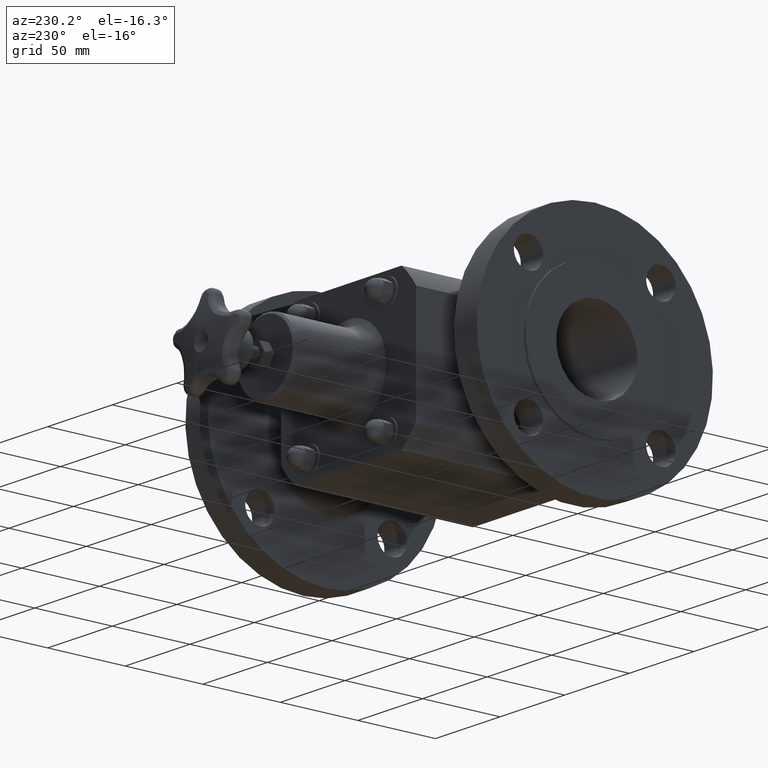
[diagram: clean part render]
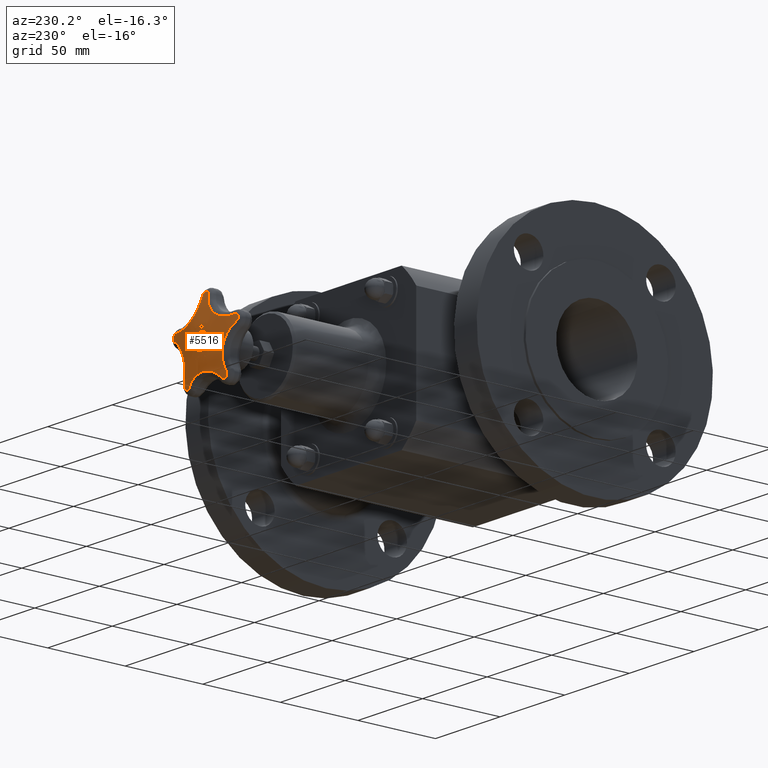
[diagram: same view with one face highlighted and labeled with its STEP entity id]
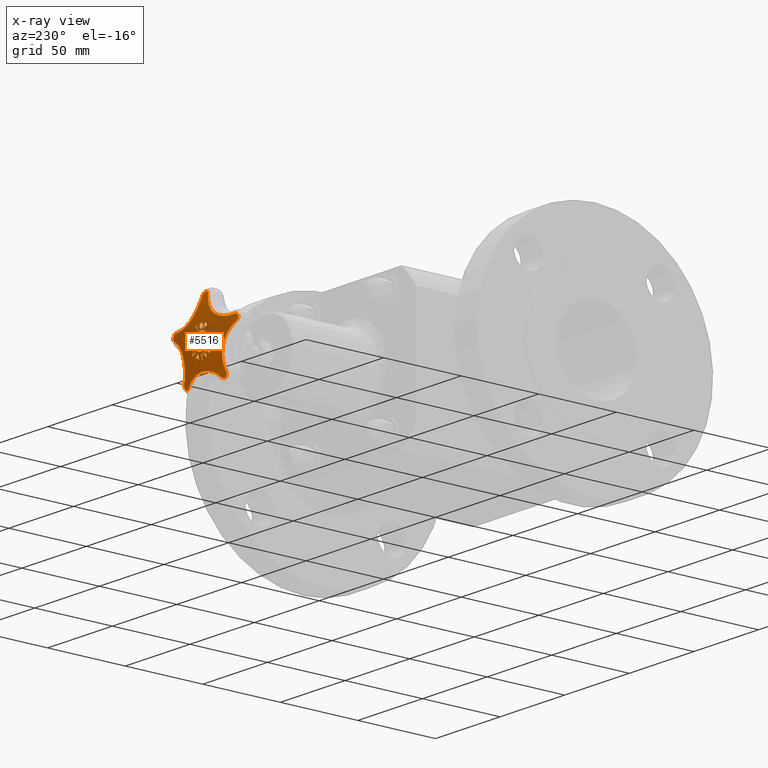
[diagram: x-ray of the same camera — body ghosted, the highlighted face saturated]
A machine part, auxiliary view. The second image highlights one B-rep face of the part: STEP entity #5516.
The next image is the same camera in x-ray: the body ghosted, the highlighted face saturated — about 0% of this face is hidden behind the body in this view.
In plain terms, the highlighted spherical surface has radius 101.6 mm.
Its self-contained STEP definition (entity closure, byte-faithful):
#2327=CARTESIAN_POINT('',(0.085862900185202,8.242578033837511,-0.334336098257463));
#2328=VERTEX_POINT('',#2327);
#2335=CARTESIAN_POINT('',(0.080862571524466,8.240070388789002,-0.364135061299997));
#2336=VERTEX_POINT('',#2335);
#2337=CARTESIAN_POINT('',(0.138077283113863,4.257500000000061,-0.023169658459774));
#2338=DIRECTION('',(0.986211736099962,9.214302E-016,-0.165488403154721));
#2339=DIRECTION('',(0.165488403154721,1.475820E-016,0.986211736099962));
#2340=AXIS2_PLACEMENT_3D('',#2337,#2338,#2339);
#2341=CIRCLE('',#2340,3.997548977913186);
#2342=EDGE_CURVE('',#2336,#2328,#2341,.T.);
#2360=CARTESIAN_POINT('',(0.066931145986267,8.240560100352910,-0.361597094393903));
#2361=VERTEX_POINT('',#2360);
#2362=CARTESIAN_POINT('',(-0.061608234058833,4.257500000000061,-0.338180345563004));
#2363=DIRECTION('',(-0.179225881333302,0.0,-0.983807950496590));
#2364=DIRECTION('',(0.0,-1.0,0.0));
#2365=AXIS2_PLACEMENT_3D('',#2362,#2363,#2364);
#2366=CIRCLE('',#2365,3.985202438944732);
#2367=EDGE_CURVE('',#2361,#2336,#2366,.T.);
#2385=CARTESIAN_POINT('',(0.086359266902222,8.249345606544418,-0.240230577846814));
#2386=VERTEX_POINT('',#2385);
#2387=CARTESIAN_POINT('',(0.121696449326061,4.257500000000061,-0.019480935927101));
#2388=DIRECTION('',(-0.987428598717144,-9.225142E-016,0.158065690254078));
#2389=DIRECTION('',(-0.158065690254078,-1.406471E-016,-0.987428598717144));
#2390=AXIS2_PLACEMENT_3D('',#2387,#2388,#2389);
#2391=CIRCLE('',#2390,3.998100857576862);
#2392=EDGE_CURVE('',#2386,#2361,#2391,.T.);
#2410=CARTESIAN_POINT('',(0.178491128782151,8.240560100243823,-0.321516958794137));
#2411=VERTEX_POINT('',#2410);
#2412=CARTESIAN_POINT('',(-0.081379549747356,4.257500000000061,-0.092237461550080));
#2413=DIRECTION('',(0.661592173204071,0.0,0.749863851879202));
#2414=DIRECTION('',(0.0,1.0,0.0));
#2415=AXIS2_PLACEMENT_3D('',#2412,#2413,#2414);
#2416=CIRCLE('',#2415,3.998108255108873);
#2417=EDGE_CURVE('',#2411,#2386,#2416,.T.);
#2453=CARTESIAN_POINT('',(0.169360113250159,8.240070388702455,-0.332340564889027));
#2454=VERTEX_POINT('',#2453);
#2455=CARTESIAN_POINT('',(0.262739148876328,4.257500000000061,-0.221652121134104));
#2456=DIRECTION('',(0.764340282334966,0.0,-0.644813099122609));
#2457=DIRECTION('',(0.0,-1.0,0.0));
#2458=AXIS2_PLACEMENT_3D('',#2455,#2456,#2457);
#2459=CIRCLE('',#2458,3.985202438627741);
#2460=EDGE_CURVE('',#2454,#2411,#2459,.T.);
#2478=CARTESIAN_POINT('',(0.146539084429395,8.242578033778210,-0.312536976105991));
#2479=VERTEX_POINT('',#2478);
#2480=CARTESIAN_POINT('',(-0.091762441742967,4.257500000000061,-0.105744133077217));
#2481=DIRECTION('',(-0.655409775395539,0.0,-0.755273477831686));
#2482=DIRECTION('',(0.0,-1.0,0.0));
#2483=AXIS2_PLACEMENT_3D('',#2480,#2481,#2482);
#2484=CIRCLE('',#2483,3.997548978137118);
#2485=EDGE_CURVE('',#2479,#2454,#2484,.T.);
#2503=CARTESIAN_POINT('',(0.116200988857738,4.257500000000061,-0.323436538421052));
#2504=DIRECTION('',(0.338111065893150,0.0,-0.941106214579735));
#2505=DIRECTION('',(0.0,-1.0,0.0));
#2506=AXIS2_PLACEMENT_3D('',#2503,#2504,#2505);
#2507=CIRCLE('',#2506,3.985208418113498);
#2508=EDGE_CURVE('',#2328,#2479,#2507,.T.);
#2538=CARTESIAN_POINT('',(0.037834369669125,8.248204436490788,0.269901206082852));
#2539=VERTEX_POINT('',#2538);
#2546=CARTESIAN_POINT('',(-0.000813251585518,8.249463335806739,0.253432563411025));
#2547=VERTEX_POINT('',#2546);
#2548=CARTESIAN_POINT('',(-0.000813251585518,8.249463335806738,0.253432563411025));
#2549=CARTESIAN_POINT('',(0.004822604549685,8.249463267161477,0.253451729844246));
#2550=CARTESIAN_POINT('',(0.010434056143409,8.249408968571611,0.254137147028970));
#2551=CARTESIAN_POINT('',(0.019829419967580,8.249191776701576,0.256945437338924));
#2552=CARTESIAN_POINT('',(0.023603879105443,8.249063271092485,0.258616838560288));
#2553=CARTESIAN_POINT('',(0.031162797320999,8.248707503911909,0.263275608997045));
#2554=CARTESIAN_POINT('',(0.034718544485047,8.248475224151731,0.266334166676060));
#2555=CARTESIAN_POINT('',(0.037834369669124,8.248204436490786,0.269901206082852));
#2556=B_SPLINE_CURVE_WITH_KNOTS('',3,(#2548,#2549,#2550,#2551,#2552,#2553,#2554,#2555),.UNSPECIFIED.,.F.,.U.,(4,2,2,4),(0.0,0.042945472093289,0.074729953679080,0.111130521126663),.UNSPECIFIED.);
#2557=EDGE_CURVE('',#2547,#2539,#2556,.T.);
#2590=CARTESIAN_POINT('',(0.051972176469600,8.244648590963305,0.316140801626153));
#2591=VERTEX_POINT('',#2590);
#2598=CARTESIAN_POINT('',(0.037834369669124,8.248204436490788,0.269901206082852));
#2599=CARTESIAN_POINT('',(0.041442739555282,8.247886429832962,0.274097371770596));
#2600=CARTESIAN_POINT('',(0.044216393332109,8.247526143654595,0.278867364485765));
#2601=CARTESIAN_POINT('',(0.051175872144365,8.246247534047958,0.295695352673442));
#2602=CARTESIAN_POINT('',(0.052000310715344,8.245304176149896,0.307867975918426));
#2603=CARTESIAN_POINT('',(0.051972176469600,8.244648590963305,0.316140801626153));
#2604=B_SPLINE_CURVE_WITH_KNOTS('',3,(#2598,#2599,#2600,#2601,#2602,#2603),.UNSPECIFIED.,.F.,.U.,(4,2,4),(0.0,0.042240697270331,0.139117363804144),.UNSPECIFIED.);
#2605=EDGE_CURVE('',#2539,#2591,#2604,.T.);
#2631=CARTESIAN_POINT('',(0.037422621985939,8.240875481075205,0.362380082417698));
#2632=VERTEX_POINT('',#2631);
#2639=CARTESIAN_POINT('',(0.051972176469600,8.244648590963305,0.316140801626153));
#2640=CARTESIAN_POINT('',(0.051955724861649,8.244265235014588,0.320978368143260));
#2641=CARTESIAN_POINT('',(0.051649887753157,8.243873160763579,0.325860197870603));
#2642=CARTESIAN_POINT('',(0.050134657362975,8.243046460787417,0.336059631335725));
#2643=CARTESIAN_POINT('',(0.048942330808366,8.242679768741301,0.340537076610656));
#2644=CARTESIAN_POINT('',(0.045132529339023,8.241814489793335,0.351068251626343));
#2645=CARTESIAN_POINT('',(0.041865078415876,8.241314249290182,0.357098260899482));
#2646=CARTESIAN_POINT('',(0.037422621985939,8.240875481075204,0.362380082417698));
#2647=B_SPLINE_CURVE_WITH_KNOTS('',3,(#2639,#2640,#2641,#2642,#2643,#2644,#2645,#2646),.UNSPECIFIED.,.F.,.U.,(4,2,2,4),(0.0,0.036978033263811,0.078812994269673,0.145814753845857),.UNSPECIFIED.);
#2648=EDGE_CURVE('',#2591,#2632,#2647,.T.);
#2676=CARTESIAN_POINT('',(-0.001238542349030,8.239552846207797,0.378488567887761));
#2677=VERTEX_POINT('',#2676);
#2684=CARTESIAN_POINT('',(0.037422621985939,8.240875481075205,0.362380082417698));
#2685=CARTESIAN_POINT('',(0.034954443929442,8.240644692501336,0.365171856276012));
#2686=CARTESIAN_POINT('',(0.032197988751053,8.240440415363450,0.367645041378230));
#2687=CARTESIAN_POINT('',(0.025433171661508,8.240054380883850,0.372335971569166));
#2688=CARTESIAN_POINT('',(0.021382576080442,8.239892027163736,0.374321631798851));
#2689=CARTESIAN_POINT('',(0.014161922593864,8.239697132621359,0.376716303028089));
#2690=CARTESIAN_POINT('',(0.011126297743758,8.239640822220808,0.377412789087581));
#2691=CARTESIAN_POINT('',(0.004967186895541,8.239568654773651,0.378304358121796));
#2692=CARTESIAN_POINT('',(0.001864839243260,8.239552808314238,0.378499121875411));
#2693=CARTESIAN_POINT('',(-0.001238542349030,8.239552846207795,0.378488567887761));
#2694=B_SPLINE_CURVE_WITH_KNOTS('',3,(#2684,#2685,#2686,#2687,#2688,#2689,#2690,#2691,#2692,#2693),.UNSPECIFIED.,.F.,.U.,(4,2,2,2,4),(0.0,0.028449418287417,0.062797366334246,0.086669104210055,0.110412733579470),.UNSPECIFIED.);
#2695=EDGE_CURVE('',#2632,#2677,#2694,.T.);
#2881=CARTESIAN_POINT('',(-0.039886494311888,8.240875481072161,0.362117169387377));
#2882=VERTEX_POINT('',#2881);
#2889=CARTESIAN_POINT('',(-0.001238542349030,8.239552846207795,0.378488567887761));
#2890=CARTESIAN_POINT('',(-0.006745334190303,8.239552913447971,0.378469840376703));
#2891=CARTESIAN_POINT('',(-0.012222719771298,8.239603190920018,0.377803010782852));
#2892=CARTESIAN_POINT('',(-0.022169110236771,8.239836259202855,0.374873454632415));
#2893=CARTESIAN_POINT('',(-0.025880772573747,8.239983982792577,0.373045650941542));
#2894=CARTESIAN_POINT('',(-0.032976239086442,8.240326456239622,0.368822005397032));
#2895=CARTESIAN_POINT('',(-0.036677483482782,8.240576120274355,0.365763676003977));
#2896=CARTESIAN_POINT('',(-0.039886494311888,8.240875481072161,0.362117169387377));
#2897=B_SPLINE_CURVE_WITH_KNOTS('',3,(#2889,#2890,#2891,#2892,#2893,#2894,#2895,#2896),.UNSPECIFIED.,.F.,.U.,(4,2,2,4),(0.0,0.041961996486355,0.079020325656231,0.132098515306939),.UNSPECIFIED.);
#2898=EDGE_CURVE('',#2677,#2882,#2897,.T.);
#2924=CARTESIAN_POINT('',(-0.054121214575593,8.244648590959130,0.315779998964418));
#2925=VERTEX_POINT('',#2924);
#2932=CARTESIAN_POINT('',(-0.039886494311888,8.240875481072161,0.362117169387377));
#2933=CARTESIAN_POINT('',(-0.043384531614648,8.241215540252521,0.357991135129825));
#2934=CARTESIAN_POINT('',(-0.046110522559896,8.241601304155973,0.353327026506886));
#2935=CARTESIAN_POINT('',(-0.049655140330858,8.242287322165410,0.344989572698872));
#2936=CARTESIAN_POINT('',(-0.051408401706377,8.242680648419814,0.340203251638014));
#2937=CARTESIAN_POINT('',(-0.053714336300573,8.243694761028996,0.327721858865082));
#2938=CARTESIAN_POINT('',(-0.054141415064126,8.244177878462876,0.321719917253610));
#2939=CARTESIAN_POINT('',(-0.054121214575593,8.244648590959130,0.315779998964418));
#2940=B_SPLINE_CURVE_WITH_KNOTS('',3,(#2932,#2933,#2934,#2935,#2936,#2937,#2938,#2939),.UNSPECIFIED.,.F.,.U.,(4,2,2,4),(0.0,0.041300163745689,0.069239721804254,0.093823977580811),.UNSPECIFIED.);
#2941=EDGE_CURVE('',#2882,#2925,#2940,.T.);
#2967=CARTESIAN_POINT('',(-0.039571990800146,8.248205379604890,0.269637962344317));
#2968=VERTEX_POINT('',#2967);
#2975=CARTESIAN_POINT('',(-0.054121214575593,8.244648590959130,0.315779998964418));
#2976=CARTESIAN_POINT('',(-0.054104973183971,8.245027048439539,0.311004246190808));
#2977=CARTESIAN_POINT('',(-0.053791585087137,8.245402200783937,0.306211457940531));
#2978=CARTESIAN_POINT('',(-0.052375519715103,8.246143410979380,0.296655576028872));
#2979=CARTESIAN_POINT('',(-0.051258684496637,8.246507467278926,0.291916990166382));
#2980=CARTESIAN_POINT('',(-0.047377403862630,8.247352193214878,0.280860112488069));
#2981=CARTESIAN_POINT('',(-0.044132654634138,8.247811607413418,0.274796561836271));
#2982=CARTESIAN_POINT('',(-0.039571990800146,8.248205379604888,0.269637962344317));
#2983=B_SPLINE_CURVE_WITH_KNOTS('',3,(#2975,#2976,#2977,#2978,#2979,#2980,#2981,#2982),.UNSPECIFIED.,.F.,.U.,(4,2,2,4),(0.0,0.036505533163791,0.073822024429602,0.126837533468264),.UNSPECIFIED.);
#2984=EDGE_CURVE('',#2925,#2968,#2983,.T.);
#3011=CARTESIAN_POINT('',(-0.039571990800146,8.248205379604890,0.269637962344317));
#3012=CARTESIAN_POINT('',(-0.036994618978143,8.248426649193283,0.266741374653484));
#3013=CARTESIAN_POINT('',(-0.034125944551208,8.248624226597652,0.264155087526019));
#3014=CARTESIAN_POINT('',(-0.028127958870902,8.248941902899334,0.260022999604723));
#3015=CARTESIAN_POINT('',(-0.024119800176995,8.249119835051880,0.257727462092389));
#3016=CARTESIAN_POINT('',(-0.015614631027453,8.249330482346506,0.255058899401249));
#3017=CARTESIAN_POINT('',(-0.012615830697542,8.249382732516510,0.254406267976287));
#3018=CARTESIAN_POINT('',(-0.006666959610797,8.249448427235750,0.253597873925736));
#3019=CARTESIAN_POINT('',(-0.003741704705232,8.249463371475571,0.253422604320575));
#3020=CARTESIAN_POINT('',(-0.000813251586154,8.249463335806738,0.253432563411023));
#3021=B_SPLINE_CURVE_WITH_KNOTS('',3,(#3011,#3012,#3013,#3014,#3015,#3016,#3017,#3018,#3019,#3020),.UNSPECIFIED.,.F.,.U.,(4,2,2,2,4),(0.0,0.029592715149351,0.055552496815722,0.069221283901438,0.082236559754027),.UNSPECIFIED.);
#3022=EDGE_CURVE('',#2968,#2547,#3021,.T.);
#3296=CARTESIAN_POINT('',(-0.247118300170073,8.244930202010510,-0.198325313099392));
#3297=VERTEX_POINT('',#3296);
#3304=CARTESIAN_POINT('',(-0.207827658530661,8.245059962457583,-0.237008882018032));
#3305=VERTEX_POINT('',#3304);
#3306=CARTESIAN_POINT('',(-0.220785948703939,4.257500000000061,-0.224250808083117));
#3307=DIRECTION('',(0.701580297701931,0.0,0.712590405405847));
#3308=DIRECTION('',(0.0,1.0,0.0));
#3309=AXIS2_PLACEMENT_3D('',#3306,#3307,#3308);
#3310=CIRCLE('',#3309,3.987601426914302);
#3311=EDGE_CURVE('',#3305,#3297,#3310,.T.);
#3329=CARTESIAN_POINT('',(-0.176580613442941,8.248324840990959,-0.205271467783728));
#3330=VERTEX_POINT('',#3329);
#3331=CARTESIAN_POINT('',(0.012958290173277,4.257500000000061,-0.012758073934916));
#3332=DIRECTION('',(-0.712590405405847,0.0,0.701580297701931));
#3333=DIRECTION('',(0.0,1.0,0.0));
#3334=AXIS2_PLACEMENT_3D('',#3331,#3332,#3333);
#3335=CIRCLE('',#3334,3.999958664069575);
#3336=EDGE_CURVE('',#3330,#3305,#3335,.T.);
#3354=CARTESIAN_POINT('',(-0.218712377317302,8.248156275729528,-0.163790674304834));
#3355=VERTEX_POINT('',#3354);
#3356=CARTESIAN_POINT('',(-0.189538903616220,4.257500000000061,-0.192513393848812));
#3357=DIRECTION('',(-0.701580297701931,0.0,-0.712590405405848));
#3358=DIRECTION('',(0.0,-1.0,0.0));
#3359=AXIS2_PLACEMENT_3D('',#3356,#3357,#3358);
#3360=CIRCLE('',#3359,3.990866271526118);
#3361=EDGE_CURVE('',#3355,#3330,#3360,.T.);
#3379=CARTESIAN_POINT('',(-0.208751528883225,8.249092069880991,-0.153673507321846));
#3380=VERTEX_POINT('',#3379);
#3381=CARTESIAN_POINT('',(-0.029173473701083,4.257500000000061,0.028722719543978));
#3382=DIRECTION('',(-0.712590405405848,0.0,0.701580297701931));
#3383=DIRECTION('',(0.0,1.0,0.0));
#3384=AXIS2_PLACEMENT_3D('',#3381,#3382,#3383);
#3385=CIRCLE('',#3384,3.999790483739644);
#3386=EDGE_CURVE('',#3380,#3355,#3385,.T.);
#3404=CARTESIAN_POINT('',(-0.155255276069070,8.249156082813551,-0.206343199041757));
#3405=VERTEX_POINT('',#3404);
#3406=CARTESIAN_POINT('',(-0.179578055182143,4.257500000000061,-0.182396226865824));
#3407=DIRECTION('',(0.701580297701931,0.0,0.712590405405847));
#3408=DIRECTION('',(0.0,1.0,0.0));
#3409=AXIS2_PLACEMENT_3D('',#3406,#3407,#3408);
#3410=CIRCLE('',#3409,3.991802016448476);
#3411=EDGE_CURVE('',#3405,#3380,#3410,.T.);
#3429=CARTESIAN_POINT('',(-0.239444912833799,8.239646073155569,-0.291854048747285));
#3430=VERTEX_POINT('',#3429);
#3431=CARTESIAN_POINT('',(0.024322779113072,4.257500000000061,-0.023946972175933));
#3432=DIRECTION('',(0.712590405405848,0.0,-0.701580297701931));
#3433=DIRECTION('',(0.0,-1.0,0.0));
#3434=AXIS2_PLACEMENT_3D('',#3431,#3432,#3433);
#3435=CIRCLE('',#3434,3.999854365466301);
#3436=EDGE_CURVE('',#3430,#3405,#3435,.T.);
#3454=CARTESIAN_POINT('',(-0.292941165647954,8.239581907347301,-0.239184357027373));
#3455=VERTEX_POINT('',#3454);
#3456=CARTESIAN_POINT('',(-0.263767691946872,4.257500000000061,-0.267907076571352));
#3457=DIRECTION('',(-0.701580297701931,0.0,-0.712590405405847));
#3458=DIRECTION('',(0.0,-1.0,0.0));
#3459=AXIS2_PLACEMENT_3D('',#3456,#3457,#3458);
#3460=CIRCLE('',#3459,3.982292355290859);
#3461=EDGE_CURVE('',#3455,#3430,#3460,.T.);
#3479=CARTESIAN_POINT('',(-0.282980317213878,8.240896837187476,-0.229067190044385));
#3480=VERTEX_POINT('',#3479);
#3481=CARTESIAN_POINT('',(-0.029173473701083,4.257500000000061,0.028722719543978));
#3482=DIRECTION('',(-0.712590405405848,0.0,0.701580297701931));
#3483=DIRECTION('',(0.0,1.0,0.0));
#3484=AXIS2_PLACEMENT_3D('',#3481,#3482,#3483);
#3485=CIRCLE('',#3484,3.999790483739644);
#3486=EDGE_CURVE('',#3480,#3455,#3485,.T.);
#3504=CARTESIAN_POINT('',(-0.240848553339517,8.241065709633297,-0.270547983523279));
#3505=VERTEX_POINT('',#3504);
#3506=CARTESIAN_POINT('',(-0.253806843512795,4.257500000000061,-0.257789909588364));
#3507=DIRECTION('',(0.701580297701931,0.0,0.712590405405847));
#3508=DIRECTION('',(0.0,1.0,0.0));
#3509=AXIS2_PLACEMENT_3D('',#3506,#3507,#3508);
#3510=CIRCLE('',#3509,3.983607215665281);
#3511=EDGE_CURVE('',#3505,#3480,#3510,.T.);
#3529=CARTESIAN_POINT('',(-0.217788506964737,8.243914037971935,-0.247126049001020));
#3530=VERTEX_POINT('',#3529);
#3531=CARTESIAN_POINT('',(0.012958290173277,4.257500000000061,-0.012758073934915));
#3532=DIRECTION('',(-0.712590405405848,0.0,0.701580297701930));
#3533=DIRECTION('',(0.0,1.0,0.0));
#3534=AXIS2_PLACEMENT_3D('',#3531,#3532,#3533);
#3535=CIRCLE('',#3534,3.999958664069575);
#3536=EDGE_CURVE('',#3530,#3505,#3535,.T.);
#3554=CARTESIAN_POINT('',(-0.257079148604149,8.243784240223038,-0.208442480082380));
#3555=VERTEX_POINT('',#3554);
#3556=CARTESIAN_POINT('',(-0.230746797138015,4.257500000000061,-0.234367975066105));
#3557=DIRECTION('',(-0.701580297701931,0.0,-0.712590405405848));
#3558=DIRECTION('',(0.0,-1.0,0.0));
#3559=AXIS2_PLACEMENT_3D('',#3556,#3557,#3558);
#3560=CIRCLE('',#3559,3.986455514347798);
#3561=EDGE_CURVE('',#3555,#3530,#3560,.T.);
#3579=CARTESIAN_POINT('',(-0.026332351466135,4.257500000000061,0.025925494983724));
#3580=DIRECTION('',(-0.712590405405848,0.0,0.701580297701931));
#3581=DIRECTION('',(0.0,1.0,0.0));
#3582=AXIS2_PLACEMENT_3D('',#3579,#3580,#3581);
#3583=CIRCLE('',#3582,3.999829305854953);
#3584=EDGE_CURVE('',#3297,#3555,#3583,.T.);
#3606=CARTESIAN_POINT('',(0.104679989358756,8.239501420719686,0.364289425065760));
#3607=VERTEX_POINT('',#3606);
#3614=CARTESIAN_POINT('',(0.193260657033247,8.239499064925013,0.326088585172620));
#3615=VERTEX_POINT('',#3614);
#3616=CARTESIAN_POINT('',(0.148881029224554,4.257500000000061,0.345227513574775));
#3617=DIRECTION('',(0.395999965100261,0.0,0.918250525532435));
#3618=DIRECTION('',(0.0,1.0,0.0));
#3619=AXIS2_PLACEMENT_3D('',#3616,#3617,#3618);
#3620=CIRCLE('',#3619,3.982292355290859);
#3621=EDGE_CURVE('',#3615,#3607,#3620,.T.);
#3646=CARTESIAN_POINT('',(0.099057688326096,8.240816377129248,0.351252350992700));
#3647=VERTEX_POINT('',#3646);
#3654=CARTESIAN_POINT('',(-0.044201039865799,4.257500000000061,0.019061911490985));
#3655=DIRECTION('',(-0.918250525532435,-8.596118E-016,0.395999965100260));
#3656=DIRECTION('',(-0.395999965100260,-3.631551E-016,-0.918250525532435));
#3657=AXIS2_PLACEMENT_3D('',#3654,#3655,#3656);
#3658=CIRCLE('',#3657,3.999710353463748);
#3659=EDGE_CURVE('',#3607,#3647,#3658,.T.);
#3679=CARTESIAN_POINT('',(0.136025829875733,8.241099428197495,0.335309661763104));
#3680=VERTEX_POINT('',#3679);
#3687=CARTESIAN_POINT('',(0.143258728191895,4.257500000000061,0.332190439501715));
#3688=DIRECTION('',(-0.395999965100261,0.0,-0.918250525532434));
#3689=DIRECTION('',(0.0,-1.0,0.0));
#3690=AXIS2_PLACEMENT_3D('',#3687,#3688,#3689);
#3691=CIRCLE('',#3690,3.983607215665281);
#3692=EDGE_CURVE('',#3647,#3680,#3691,.T.);
#3712=CARTESIAN_POINT('',(0.094128134509063,8.249294244967672,0.238156671410436));
#3713=VERTEX_POINT('',#3712);
#3720=CARTESIAN_POINT('',(-0.007232898316163,4.257500000000061,0.003119222261388));
#3721=DIRECTION('',(-0.918250525532435,-8.596118E-016,0.395999965100261));
#3722=DIRECTION('',(-0.395999965100261,-3.631551E-016,-0.918250525532435));
#3723=AXIS2_PLACEMENT_3D('',#3720,#3721,#3722);
#3724=CIRCLE('',#3723,3.999992244446786);
#3725=EDGE_CURVE('',#3680,#3713,#3724,.T.);
#3745=CARTESIAN_POINT('',(0.108772519084281,8.249293856457166,0.231841209976490));
#3746=VERTEX_POINT('',#3745);
#3753=CARTESIAN_POINT('',(0.101361032825225,4.257500000000061,0.235037449149048));
#3754=DIRECTION('',(-0.395999965100260,0.0,-0.918250525532435));
#3755=DIRECTION('',(0.0,-1.0,0.0));
#3756=AXIS2_PLACEMENT_3D('',#3753,#3754,#3755);
#3757=CIRCLE('',#3756,3.991802016448476);
#3758=EDGE_CURVE('',#3713,#3746,#3757,.T.);
#3778=CARTESIAN_POINT('',(0.150670214450951,8.241099038887770,0.328994200329157));
#3779=VERTEX_POINT('',#3778);
#3786=CARTESIAN_POINT('',(0.007411486259055,4.257500000000061,-0.003196239172558));
#3787=DIRECTION('',(0.918250525532434,8.596118E-016,-0.395999965100261));
#3788=DIRECTION('',(0.395999965100261,3.631551E-016,0.918250525532434));
#3789=AXIS2_PLACEMENT_3D('',#3786,#3787,#3788);
#3790=CIRCLE('',#3789,3.999991856732535);
#3791=EDGE_CURVE('',#3746,#3779,#3790,.T.);
#3811=CARTESIAN_POINT('',(0.187638356000587,8.240814022112261,0.313051511099560));
#3812=VERTEX_POINT('',#3811);
#3819=CARTESIAN_POINT('',(0.143258728191895,4.257500000000061,0.332190439501715));
#3820=DIRECTION('',(-0.395999965100261,0.0,-0.918250525532435));
#3821=DIRECTION('',(0.0,-1.0,0.0));
#3822=AXIS2_PLACEMENT_3D('',#3819,#3820,#3821);
#3823=CIRCLE('',#3822,3.983607215665281);
#3824=EDGE_CURVE('',#3779,#3812,#3823,.T.);
#3843=CARTESIAN_POINT('',(0.044379627808692,4.257500000000061,-0.019138928402155));
#3844=DIRECTION('',(0.918250525532435,8.596118E-016,-0.395999965100259));
#3845=DIRECTION('',(0.395999965100259,3.631551E-016,0.918250525532435));
#3846=AXIS2_PLACEMENT_3D('',#3843,#3844,#3845);
#3847=CIRCLE('',#3846,3.999708008099489);
#3848=EDGE_CURVE('',#3812,#3615,#3847,.T.);
#3947=CARTESIAN_POINT('',(-0.132776476717604,8.249152316888598,-0.221545002897485));
#3948=VERTEX_POINT('',#3947);
#3955=CARTESIAN_POINT('',(-0.141106922486278,8.241658741024878,-0.326447488490870));
#3956=VERTEX_POINT('',#3955);
#3957=CARTESIAN_POINT('',(-0.114461481346890,4.257500000000061,0.009089538322840));
#3958=DIRECTION('',(0.996861755361221,9.307693E-016,-0.079162116559279));
#3959=DIRECTION('',(0.079162116559279,6.695289E-017,0.996861755361221));
#3960=AXIS2_PLACEMENT_3D('',#3957,#3958,#3959);
#3961=CIRCLE('',#3960,3.998351654067081);
#3962=EDGE_CURVE('',#3956,#3948,#3961,.T.);
#3980=CARTESIAN_POINT('',(-0.071391562909487,8.249171847508825,-0.247909472492114));
#3981=VERTEX_POINT('',#3980);
#3982=CARTESIAN_POINT('',(0.083150511259556,4.257500000000061,-0.073809704991098));
#3983=DIRECTION('',(-0.747864056465855,0.0,0.663851905959784));
#3984=DIRECTION('',(0.0,1.0,0.0));
#3985=AXIS2_PLACEMENT_3D('',#3982,#3983,#3984);
#3986=CIRCLE('',#3985,3.998454466406539);
#3987=EDGE_CURVE('',#3981,#3956,#3986,.T.);
#4005=CARTESIAN_POINT('',(-0.055754940032602,8.248998131883230,-0.254625312636307));
#4006=VERTEX_POINT('',#4005);
#4007=CARTESIAN_POINT('',(-0.101011795140338,4.257500000000061,-0.235187752062933));
#4008=DIRECTION('',(0.394635554071923,0.0,0.918837732933485));
#4009=DIRECTION('',(0.0,1.0,0.0));
#4010=AXIS2_PLACEMENT_3D('',#4007,#4008,#4009);
#4011=CIRCLE('',#4010,3.991802016448476);
#4012=EDGE_CURVE('',#4006,#3981,#4011,.T.);
#4030=CARTESIAN_POINT('',(-0.140907158403208,8.239784076964359,-0.348652696916783));
#4031=VERTEX_POINT('',#4030);
#4032=CARTESIAN_POINT('',(0.096057099062325,4.257500000000061,-0.086990350077204));
#4033=DIRECTION('',(0.741222642945153,0.0,-0.671259259590065));
#4034=DIRECTION('',(0.0,-1.0,0.0));
#4035=AXIS2_PLACEMENT_3D('',#4032,#4033,#4034);
#4036=CIRCLE('',#4035,3.997900162924680);
#4037=EDGE_CURVE('',#4031,#4006,#4036,.T.);
#4055=CARTESIAN_POINT('',(-0.156722485541543,8.239781975401131,-0.341860104313800));
#4056=VERTEX_POINT('',#4055);
#4057=CARTESIAN_POINT('',(-0.148368062214244,4.257500000000061,-0.345448281377658));
#4058=DIRECTION('',(-0.394635554071924,0.0,-0.918837732933484));
#4059=DIRECTION('',(0.0,-1.0,0.0));
#4060=AXIS2_PLACEMENT_3D('',#4057,#4058,#4059);
#4061=CIRCLE('',#4060,3.982292355290859);
#4062=EDGE_CURVE('',#4056,#4031,#4061,.T.);
#4080=CARTESIAN_POINT('',(-0.147698282548689,8.248978628851299,-0.215136172588455));
#4081=VERTEX_POINT('',#4080);
#4082=CARTESIAN_POINT('',(-0.131710197155654,4.257500000000061,0.009379282501568));
#4083=DIRECTION('',(-0.997474063033574,-9.312842E-016,0.071031637847470));
#4084=DIRECTION('',(-0.071031637847470,-5.936169E-017,-0.997474063033574));
#4085=AXIS2_PLACEMENT_3D('',#4082,#4083,#4084);
#4086=CIRCLE('',#4085,3.997819962557716);
#4087=EDGE_CURVE('',#4081,#4056,#4086,.T.);
#4105=CARTESIAN_POINT('',(-0.101011795140338,4.257500000000061,-0.235187752062934));
#4106=DIRECTION('',(0.394635554071923,0.0,0.918837732933485));
#4107=DIRECTION('',(0.0,1.0,0.0));
#4108=AXIS2_PLACEMENT_3D('',#4105,#4106,#4107);
#4109=CIRCLE('',#4108,3.991802016448476);
#4110=EDGE_CURVE('',#3948,#4081,#4109,.T.);
#4132=CARTESIAN_POINT('',(-0.069865805707585,8.249162659387539,0.248491414025746));
#4133=VERTEX_POINT('',#4132);
#4140=CARTESIAN_POINT('',(-0.084532147718006,8.249264063873255,0.242227113207305));
#4141=VERTEX_POINT('',#4140);
#4142=CARTESIAN_POINT('',(-0.100539922146023,4.257500000000061,0.235389858602194));
#4143=DIRECTION('',(0.392792028171763,0.0,-0.919627328108899));
#4144=DIRECTION('',(0.0,-1.0,0.0));
#4145=AXIS2_PLACEMENT_3D('',#4142,#4143,#4144);
#4146=CIRCLE('',#4145,3.991802016448476);
#4147=EDGE_CURVE('',#4141,#4133,#4146,.T.);
#4172=CARTESIAN_POINT('',(-0.117000849670737,8.239652665435456,0.358846694762692));
#4173=VERTEX_POINT('',#4172);
#4180=CARTESIAN_POINT('',(0.030674116438438,4.257500000000061,0.013101555423552));
#4181=DIRECTION('',(0.919627328108900,8.554233E-016,0.392792028171762));
#4182=DIRECTION('',(-0.392792028171762,-3.729145E-016,0.919627328108900));
#4183=AXIS2_PLACEMENT_3D('',#4180,#4181,#4182);
#4184=CIRCLE('',#4183,3.999860928560668);
#4185=EDGE_CURVE('',#4133,#4173,#4184,.T.);
#4205=CARTESIAN_POINT('',(-0.144723813227020,8.239791062296607,0.347005638337589));
#4206=VERTEX_POINT('',#4205);
#4213=CARTESIAN_POINT('',(-0.147674966109175,4.257500000000061,0.345745139339139));
#4214=DIRECTION('',(-0.392792028171761,0.0,0.919627328108900));
#4215=DIRECTION('',(0.0,1.0,0.0));
#4216=AXIS2_PLACEMENT_3D('',#4213,#4214,#4215);
#4217=CIRCLE('',#4216,3.982292355290859);
#4218=EDGE_CURVE('',#4173,#4206,#4217,.T.);
#4244=CARTESIAN_POINT('',(-0.170668187046202,8.240392332671306,0.327781995050034));
#4245=VERTEX_POINT('',#4244);
#4252=CARTESIAN_POINT('',(-0.144723813227020,8.239791062296606,0.347005638337589));
#4253=CARTESIAN_POINT('',(-0.150088261328745,8.239795762969385,0.344714370575644));
#4254=CARTESIAN_POINT('',(-0.155816045050100,8.239823287565359,0.341843284165148));
#4255=CARTESIAN_POINT('',(-0.163386369744130,8.239985173854736,0.336346581494136));
#4256=CARTESIAN_POINT('',(-0.167427829443189,8.240105667536268,0.332952450875756));
#4257=CARTESIAN_POINT('',(-0.170668187046202,8.240392332671306,0.327781995050034));
#4258=B_SPLINE_CURVE_WITH_KNOTS('',3,(#4252,#4253,#4254,#4255,#4256,#4257),.UNSPECIFIED.,.F.,.U.,(4,2,4),(0.0,0.044449644500484,0.071079555324561),.UNSPECIFIED.);
#4259=EDGE_CURVE('',#4206,#4245,#4258,.T.);
#4431=CARTESIAN_POINT('',(-0.172546135424809,8.242815390487438,0.295785512651345));
#4432=VERTEX_POINT('',#4431);
#4439=CARTESIAN_POINT('',(-0.170668187046202,8.240392332671306,0.327781995050034));
#4440=CARTESIAN_POINT('',(-0.172986087574707,8.240591167832038,0.324159065981218));
#4441=CARTESIAN_POINT('',(-0.174567491806923,8.240838750576351,0.320245416315975));
#4442=CARTESIAN_POINT('',(-0.176129629330608,8.241442814318310,0.311764074180628));
#4443=CARTESIAN_POINT('',(-0.175887094211251,8.241718772794679,0.308335133779386));
#4444=CARTESIAN_POINT('',(-0.175001277294215,8.242211349698764,0.302427671544135));
#4445=CARTESIAN_POINT('',(-0.173928522803419,8.242515328212987,0.299022037632057));
#4446=CARTESIAN_POINT('',(-0.172546135424809,8.242815390487436,0.295785512651345));
#4447=B_SPLINE_CURVE_WITH_KNOTS('',3,(#4439,#4440,#4441,#4442,#4443,#4444,#4445,#4446),.UNSPECIFIED.,.F.,.U.,(4,2,2,4),(0.0,0.032808337471925,0.065876100718766,0.113361042324126),.UNSPECIFIED.);
#4448=EDGE_CURVE('',#4245,#4432,#4447,.T.);
#4476=CARTESIAN_POINT('',(-0.152421846635916,8.245095568897961,0.275407261294860));
#4477=VERTEX_POINT('',#4476);
#4484=CARTESIAN_POINT('',(-0.172546135424809,8.242815390487436,0.295785512651345));
#4485=CARTESIAN_POINT('',(-0.171321928932313,8.243081117873420,0.292919329875214));
#4486=CARTESIAN_POINT('',(-0.169804261392701,8.243343863950898,0.290215418914446));
#4487=CARTESIAN_POINT('',(-0.165910493783790,8.243891779065054,0.284897251377496));
#4488=CARTESIAN_POINT('',(-0.163657217073235,8.244148699667360,0.282590003201545));
#4489=CARTESIAN_POINT('',(-0.158684575838199,8.244639217410869,0.278482510744069));
#4490=CARTESIAN_POINT('',(-0.155702157988005,8.244881831002976,0.276686491070644));
#4491=CARTESIAN_POINT('',(-0.152421846635916,8.245095568897959,0.275407261294860));
#4492=B_SPLINE_CURVE_WITH_KNOTS('',3,(#4484,#4485,#4486,#4487,#4488,#4489,#4490,#4491),.UNSPECIFIED.,.F.,.U.,(4,2,2,4),(0.0,0.023835253161564,0.050398261842090,0.082258015573386),.UNSPECIFIED.);
#4493=EDGE_CURVE('',#4432,#4477,#4492,.T.);
#4521=CARTESIAN_POINT('',(-0.114533366717588,8.246179920008265,0.278055037055049));
#4522=VERTEX_POINT('',#4521);
#4529=CARTESIAN_POINT('',(-0.152421846635916,8.245095568897963,0.275407261294860));
#4530=CARTESIAN_POINT('',(-0.149545358874614,8.245283458798905,0.274278789378132));
#4531=CARTESIAN_POINT('',(-0.146578636591120,8.245448267506863,0.273482909697009));
#4532=CARTESIAN_POINT('',(-0.136733843929605,8.245902980470367,0.272015981091796));
#4533=CARTESIAN_POINT('',(-0.131190118846066,8.246021826509104,0.272931617342635));
#4534=CARTESIAN_POINT('',(-0.123610109338999,8.246155761130829,0.274533252414455));
#4535=CARTESIAN_POINT('',(-0.118915137061153,8.246184566599633,0.276183491476069));
#4536=CARTESIAN_POINT('',(-0.114533366717588,8.246179920008265,0.278055037055049));
#4537=B_SPLINE_CURVE_WITH_KNOTS('',3,(#4529,#4530,#4531,#4532,#4533,#4534,#4535,#4536),.UNSPECIFIED.,.F.,.U.,(4,2,2,4),(0.0,0.023588710723971,0.075924731072629,0.159708716541644),.UNSPECIFIED.);
#4538=EDGE_CURVE('',#4477,#4522,#4537,.T.);
#4558=CARTESIAN_POINT('',(-0.102102747574610,8.246143834417236,0.283364413968241));
#4559=VERTEX_POINT('',#4558);
#4566=CARTESIAN_POINT('',(-0.118110522002628,4.257500000000061,0.276527159363129));
#4567=DIRECTION('',(0.392792028171763,0.0,-0.919627328108899));
#4568=DIRECTION('',(0.0,-1.0,0.0));
#4569=AXIS2_PLACEMENT_3D('',#4566,#4567,#4568);
#4570=CIRCLE('',#4569,3.988681816681650);
#4571=EDGE_CURVE('',#4522,#4559,#4570,.T.);
#4590=CARTESIAN_POINT('',(0.016007774428017,4.257500000000061,0.006837254605111));
#4591=DIRECTION('',(-0.919627328108900,-8.554233E-016,-0.392792028171761));
#4592=DIRECTION('',(0.392792028171761,3.729145E-016,-0.919627328108900));
#4593=AXIS2_PLACEMENT_3D('',#4590,#4591,#4592);
#4594=CIRCLE('',#4593,3.999962125209104);
#4595=EDGE_CURVE('',#4559,#4141,#4594,.T.);
#4826=CARTESIAN_POINT('',(-0.025446717491288,8.241118720077457,-0.360741399922221));
#4827=VERTEX_POINT('',#4826);
#4834=CARTESIAN_POINT('',(-0.015977407253335,8.249295876022535,-0.255559008112469));
#4835=VERTEX_POINT('',#4834);
#4836=CARTESIAN_POINT('',(0.006973418085272,4.257500000000061,-0.000627799559720));
#4837=DIRECTION('',(-0.995971991168664,-9.300119E-016,0.089664891722048));
#4838=DIRECTION('',(-0.089664891722048,-7.675971E-017,-0.995971991168664));
#4839=AXIS2_PLACEMENT_3D('',#4836,#4837,#4838);
#4840=CIRCLE('',#4839,3.999993872158797);
#4841=EDGE_CURVE('',#4835,#4827,#4840,.T.);
#4859=CARTESIAN_POINT('',(-0.003483366237260,8.249254161384062,-0.256683815682171));
#4860=VERTEX_POINT('',#4859);
#4861=CARTESIAN_POINT('',(-0.022950825338608,4.257500000000061,-0.254931208552750));
#4862=DIRECTION('',(0.089664891722049,0.0,0.995971991168664));
#4863=DIRECTION('',(0.0,1.0,0.0));
#4864=AXIS2_PLACEMENT_3D('',#4861,#4862,#4863);
#4865=CIRCLE('',#4864,3.991802016448476);
#4866=EDGE_CURVE('',#4860,#4835,#4865,.T.);
#4884=CARTESIAN_POINT('',(-0.014077484044914,8.239918389468953,-0.374360248507998));
#4885=VERTEX_POINT('',#4884);
#4886=CARTESIAN_POINT('',(0.019467459101347,4.257500000000061,-0.001752607129422));
#4887=DIRECTION('',(0.995971991168664,9.300119E-016,-0.089664891722048));
#4888=DIRECTION('',(0.089664891722048,7.675971E-017,0.995971991168664));
#4889=AXIS2_PLACEMENT_3D('',#4886,#4887,#4888);
#4890=CIRCLE('',#4889,3.999952243015458);
#4891=EDGE_CURVE('',#4885,#4860,#4890,.T.);
#4909=CARTESIAN_POINT('',(-0.053012402560126,8.239918389467412,-0.370855034221021));
#4910=VERTEX_POINT('',#4909);
#4911=CARTESIAN_POINT('',(-0.033544943146262,4.257500000000061,-0.372607641378577));
#4912=DIRECTION('',(-0.089664891722049,0.0,-0.995971991168664));
#4913=DIRECTION('',(0.0,-1.0,0.0));
#4914=AXIS2_PLACEMENT_3D('',#4911,#4912,#4913);
#4915=CIRCLE('',#4914,3.982466356716100);
#4916=EDGE_CURVE('',#4910,#4885,#4915,.T.);
#4934=CARTESIAN_POINT('',(-0.051887594990424,8.241076919809101,-0.358360993204946));
#4935=VERTEX_POINT('',#4934);
#4936=CARTESIAN_POINT('',(-0.019467459413864,4.257500000000061,0.001752607157555));
#4937=DIRECTION('',(-0.995971991168664,-9.300119E-016,0.089664891722049));
#4938=DIRECTION('',(-0.089664891722049,-7.675971E-017,-0.995971991168664));
#4939=AXIS2_PLACEMENT_3D('',#4936,#4937,#4938);
#4940=CIRCLE('',#4939,3.999952243013925);
#4941=EDGE_CURVE('',#4935,#4910,#4940,.T.);
#4959=CARTESIAN_POINT('',(-0.032420135576561,4.257500000000061,-0.360113600362501));
#4960=DIRECTION('',(0.089664891722049,0.0,0.995971991168664));
#4961=DIRECTION('',(0.0,1.0,0.0));
#4962=AXIS2_PLACEMENT_3D('',#4959,#4960,#4961);
#4963=CIRCLE('',#4962,3.983624873107803);
#4964=EDGE_CURVE('',#4827,#4935,#4963,.T.);
#4986=CARTESIAN_POINT('',(0.158721080860078,8.248978628851299,-0.207137572435437));
#4987=VERTEX_POINT('',#4986);
#4994=CARTESIAN_POINT('',(0.169441733074480,8.249152316888598,-0.194939170438111));
#4995=VERTEX_POINT('',#4994);
#4996=CARTESIAN_POINT('',(0.192263240588115,4.257500000000061,-0.168971914223765));
#4997=DIRECTION('',(-0.751139115701745,0.0,0.660143945562481));
#4998=DIRECTION('',(0.0,1.0,0.0));
#4999=AXIS2_PLACEMENT_3D('',#4996,#4997,#4998);
#5000=CIRCLE('',#4999,3.991802016448476);
#5001=EDGE_CURVE('',#4995,#4987,#5000,.T.);
#5026=CARTESIAN_POINT('',(0.276397654900072,8.239781975401131,-0.255018832170284));
#5027=VERTEX_POINT('',#5026);
#5034=CARTESIAN_POINT('',(-0.049765265912097,4.257500000000061,-0.122306848883140));
#5035=DIRECTION('',(-0.376884729195410,0.0,-0.926260169120589));
#5036=DIRECTION('',(0.0,-1.0,0.0));
#5037=AXIS2_PLACEMENT_3D('',#5034,#5035,#5036);
#5038=CIRCLE('',#5037,3.997819962557716);
#5039=EDGE_CURVE('',#4987,#5027,#5038,.T.);
#5059=CARTESIAN_POINT('',(0.287760262336893,8.239784076964360,-0.242089986939585));
#5060=VERTEX_POINT('',#5059);
#5067=CARTESIAN_POINT('',(0.282399935586322,4.257500000000061,-0.248189188670306));
#5068=DIRECTION('',(0.751139115701747,0.0,-0.660143945562480));
#5069=DIRECTION('',(0.0,-1.0,0.0));
#5070=AXIS2_PLACEMENT_3D('',#5067,#5068,#5069);
#5071=CIRCLE('',#5070,3.982292355290859);
#5072=EDGE_CURVE('',#5027,#5060,#5071,.T.);
#5092=CARTESIAN_POINT('',(0.224778273247024,8.248998131883230,-0.131974963721374));
#5093=VERTEX_POINT('',#5092);
#5100=CARTESIAN_POINT('',(0.112492012560625,4.257500000000061,0.064341544874862));
#5101=DIRECTION('',(0.868042317271149,8.065672E-016,0.496490216848765));
#5102=DIRECTION('',(-0.496490216848765,-4.693223E-016,0.868042317271149));
#5103=AXIS2_PLACEMENT_3D('',#5100,#5101,#5102);
#5104=CIRCLE('',#5103,3.997900162924679);
#5105=EDGE_CURVE('',#5060,#5093,#5104,.T.);
#5125=CARTESIAN_POINT('',(0.213544056854686,8.249171847508825,-0.144757720305398));
#5126=VERTEX_POINT('',#5125);
#5133=CARTESIAN_POINT('',(0.192263240588115,4.257500000000061,-0.168971914223765));
#5134=DIRECTION('',(-0.751139115701746,0.0,0.660143945562480));
#5135=DIRECTION('',(0.0,1.0,0.0));
#5136=AXIS2_PLACEMENT_3D('',#5133,#5134,#5135);
#5137=CIRCLE('',#5136,3.991802016448476);
#5138=EDGE_CURVE('',#5093,#5126,#5137,.T.);
#5158=CARTESIAN_POINT('',(0.266588010713144,8.241658741024878,-0.235393200538052));
#5159=VERTEX_POINT('',#5158);
#5166=CARTESIAN_POINT('',(0.095958453034006,4.257500000000061,0.056159196619242));
#5167=DIRECTION('',(-0.863059972225388,0.0,-0.505101459453755));
#5168=DIRECTION('',(0.0,-1.0,0.0));
#5169=AXIS2_PLACEMENT_3D('',#5166,#5167,#5168);
#5170=CIRCLE('',#5169,3.998454466406539);
#5171=EDGE_CURVE('',#5126,#5159,#5170,.T.);
#5190=CARTESIAN_POINT('',(-0.044140309788648,4.257500000000061,-0.105998506927260));
#5191=DIRECTION('',(0.384424403566333,0.0,0.923156475329437));
#5192=DIRECTION('',(0.0,1.0,0.0));
#5193=AXIS2_PLACEMENT_3D('',#5190,#5191,#5192);
#5194=CIRCLE('',#5193,3.998351654067081);
#5195=EDGE_CURVE('',#5159,#4995,#5194,.T.);
#5245=CARTESIAN_POINT('',(-4.513780E-015,4.257500000000061,-4.361955E-016));
#5246=DIRECTION('',(0.0,0.0,1.0));
#5247=DIRECTION('',(1.0,0.0,0.0));
#5248=AXIS2_PLACEMENT_3D('',#5245,#5246,#5247);
#5249=SPHERICAL_SURFACE('',#5248,4.0);
#5250=CARTESIAN_POINT('',(0.634239059988190,8.139776509861823,-0.725030975725086));
#5251=VERTEX_POINT('',#5250);
#5252=CARTESIAN_POINT('',(0.939272693013330,8.139776509861804,0.213766014920971));
#5253=VERTEX_POINT('',#5252);
#5254=CARTESIAN_POINT('',(0.634239059988190,8.139776509861822,-0.725030975725086));
#5255=CARTESIAN_POINT('',(0.609404925107198,8.152252050247304,-0.679953289228776));
#5256=CARTESIAN_POINT('',(0.579295373667209,8.169192271291394,-0.606733106999333));
#5257=CARTESIAN_POINT('',(0.556968279162651,8.186642815983076,-0.503679434797751));
#5258=CARTESIAN_POINT('',(0.546606536563502,8.200481207932794,-0.398942756471274));
#5259=CARTESIAN_POINT('',(0.555107837137075,8.208715921581009,-0.291152504805418));
#5260=CARTESIAN_POINT('',(0.582018453265826,8.210693940362157,-0.188720216378567));
#5261=CARTESIAN_POINT('',(0.621146067700840,8.208618887038826,-0.088871435629458));
#5262=CARTESIAN_POINT('',(0.691305382054994,8.198312706959561,0.024904038524061));
#5263=CARTESIAN_POINT('',(0.803579228092393,8.174648769396773,0.136975854965290));
#5264=CARTESIAN_POINT('',(0.892685456524011,8.152252050247290,0.191894538714845));
#5265=CARTESIAN_POINT('',(0.939272693013330,8.139776509861806,0.213766014920971));
#5266=B_SPLINE_CURVE_WITH_KNOTS('',3,(#5254,#5255,#5256,#5257,#5258,#5259,#5260,#5261,#5262,#5263,#5264,#5265),.UNSPECIFIED.,.F.,.U.,(4,1,1,1,1,1,1,1,1,4),(0.0,0.391421298642903,0.587131947964354,0.782842597285806,1.174263895928709,1.369974545250160,1.565685194571612,1.957106493214515,2.348527791857418,2.739949090500320),.UNSPECIFIED.);
#5267=EDGE_CURVE('',#5251,#5253,#5266,.T.);
#5268=ORIENTED_EDGE('',*,*,#5267,.F.);
#5269=CARTESIAN_POINT('',(0.493554785946231,8.139776509861891,-0.827244083837786));
#5270=VERTEX_POINT('',#5269);
#5271=CARTESIAN_POINT('',(0.493554785946231,8.139776509861891,-0.827244083837786));
#5272=CARTESIAN_POINT('',(0.501637970017590,8.136911454578197,-0.835867225160408));
#5273=CARTESIAN_POINT('',(0.521408639412998,8.131288612692931,-0.849918143991739));
#5274=CARTESIAN_POINT('',(0.557544321062318,8.124579776554301,-0.857497261177752));
#5275=CARTESIAN_POINT('',(0.594045347936755,8.120829462460048,-0.849863148349026));
#5276=CARTESIAN_POINT('',(0.619473289138538,8.120829675684004,-0.831388131927988));
#5277=CARTESIAN_POINT('',(0.633853706060202,8.122687573472808,-0.811583970215278));
#5278=CARTESIAN_POINT('',(0.643896251702397,8.125676590463776,-0.789227776899078));
#5279=CARTESIAN_POINT('',(0.646508083093457,8.130148976129561,-0.764775334555420));
#5280=CARTESIAN_POINT('',(0.641802086992487,8.135475687957589,-0.741288054728254));
#5281=CARTESIAN_POINT('',(0.637090686737675,8.138343982220006,-0.730207106773521));
#5282=CARTESIAN_POINT('',(0.634239059988132,8.139776509861852,-0.725030975724981));
#5283=B_SPLINE_CURVE_WITH_KNOTS('',3,(#5271,#5272,#5273,#5274,#5275,#5276,#5277,#5278,#5279,#5280,#5281,#5282),.UNSPECIFIED.,.F.,.U.,(4,1,1,1,1,1,1,1,1,4),(0.0,0.089891389485037,0.179782778970073,0.269674168455110,0.359565557940146,0.404511252682665,0.449456947425183,0.539348336910220,0.584294031652738,0.629239726395256),.UNSPECIFIED.);
#5284=EDGE_CURVE('',#5270,#5251,#5283,.T.);
#5285=ORIENTED_EDGE('',*,*,#5284,.F.);
#5286=CARTESIAN_POINT('',(-0.493554785946608,8.139776509861761,-0.827244083838169));
#5287=VERTEX_POINT('',#5286);
#5288=CARTESIAN_POINT('',(-0.493554785946607,8.139776509861763,-0.827244083838169));
#5289=CARTESIAN_POINT('',(-0.458357528183626,8.152252050247249,-0.789695646838575));
#5290=CARTESIAN_POINT('',(-0.378597575911424,8.174648752874139,-0.721921538492922));
#5291=CARTESIAN_POINT('',(-0.237306997461648,8.198313455289631,-0.649772357824039));
#5292=CARTESIAN_POINT('',(-0.107440531722353,8.208618816185002,-0.618208280138774));
#5293=CARTESIAN_POINT('',(-0.000358706680980,8.210696372961282,-0.611842514187330));
#5294=CARTESIAN_POINT('',(0.092079753795860,8.208960897944854,-0.617160563059436));
#5295=CARTESIAN_POINT('',(0.197516049600318,8.201775528869362,-0.639167385712951));
#5296=CARTESIAN_POINT('',(0.295599153174330,8.188817803525216,-0.678737549616440));
#5297=CARTESIAN_POINT('',(0.397978308178761,8.169197304172890,-0.738418404099999));
#5298=CARTESIAN_POINT('',(0.458357528183222,8.152252050247366,-0.789695646838220));
#5299=CARTESIAN_POINT('',(0.493554785946234,8.139776509861889,-0.827244083837788));
#5300=B_SPLINE_CURVE_WITH_KNOTS('',3,(#5288,#5289,#5290,#5291,#5292,#5293,#5294,#5295,#5296,#5297,#5298,#5299),.UNSPECIFIED.,.F.,.U.,(4,1,1,1,1,1,1,1,1,4),(0.0,0.391421298642866,0.782842597285732,1.174263895928598,1.369974545250031,1.565685194571464,1.859251168553613,2.152817142535763,2.348527791857196,2.739949090500062),.UNSPECIFIED.);
#5301=EDGE_CURVE('',#5287,#5270,#5300,.T.);
#5302=ORIENTED_EDGE('',*,*,#5301,.F.);
#5303=CARTESIAN_POINT('',(-0.638344111801270,8.137505170405495,-0.733537096918586));
#5304=VERTEX_POINT('',#5303);
#5305=CARTESIAN_POINT('',(-0.638344111801270,8.137505170405497,-0.733537096918586));
#5306=CARTESIAN_POINT('',(-0.642732585975753,8.134797134448323,-0.744042137357271));
#5307=CARTESIAN_POINT('',(-0.647418597279795,8.129615533380848,-0.766808887431410));
#5308=CARTESIAN_POINT('',(-0.641722893811287,8.124652870029339,-0.795965755083083));
#5309=CARTESIAN_POINT('',(-0.630564000665403,8.122152556156063,-0.816668426495070));
#5310=CARTESIAN_POINT('',(-0.619218379668772,8.121077774639339,-0.830323566474676));
#5311=CARTESIAN_POINT('',(-0.605334432361082,8.120882754688736,-0.841392759509747));
#5312=CARTESIAN_POINT('',(-0.584274664743975,8.121774517659301,-0.852203403959737));
#5313=CARTESIAN_POINT('',(-0.554832474470002,8.125020903468263,-0.857243995433770));
#5314=CARTESIAN_POINT('',(-0.520366833023615,8.131575369923645,-0.849226691108236));
#5315=CARTESIAN_POINT('',(-0.501332804766131,8.137019619295034,-0.835541674849112));
#5316=CARTESIAN_POINT('',(-0.493554785946457,8.139776509861814,-0.827244083838009));
#5317=B_SPLINE_CURVE_WITH_KNOTS('',3,(#5305,#5306,#5307,#5308,#5309,#5310,#5311,#5312,#5313,#5314,#5315,#5316),.UNSPECIFIED.,.F.,.U.,(4,1,1,1,1,1,1,1,1,4),(0.0,0.086497710922585,0.172995421845170,0.216244277306462,0.259493132767755,0.302741988229047,0.345990843690340,0.432488554612925,0.518986265535510,0.605483976458095),.UNSPECIFIED.);
#5318=EDGE_CURVE('',#5304,#5287,#5317,.T.);
#5319=ORIENTED_EDGE('',*,*,#5318,.F.);
#5320=CARTESIAN_POINT('',(-0.947593522284921,8.137505170405403,0.218234722607282));
#5321=VERTEX_POINT('',#5320);
#5322=CARTESIAN_POINT('',(-0.947593522284921,8.137505170405403,0.218234722607282));
#5323=CARTESIAN_POINT('',(-0.904284021874674,8.149565117402410,0.191873864021962));
#5324=CARTESIAN_POINT('',(-0.842166676018936,8.165771090176261,0.145143218850335));
#5325=CARTESIAN_POINT('',(-0.760492879361314,8.184474410797062,0.061306610950410));
#5326=CARTESIAN_POINT('',(-0.697947127789602,8.196670625145616,-0.021536796440665));
#5327=CARTESIAN_POINT('',(-0.635525588632366,8.205109153388374,-0.137568714966975));
#5328=CARTESIAN_POINT('',(-0.591003048213528,8.205087132051819,-0.274795446770265));
#5329=CARTESIAN_POINT('',(-0.573668810563067,8.193577304635165,-0.431918548232812));
#5330=CARTESIAN_POINT('',(-0.588448145593588,8.171202983388410,-0.587298641259278));
#5331=CARTESIAN_POINT('',(-0.618800513865733,8.149565117402496,-0.686754028711439));
#5332=CARTESIAN_POINT('',(-0.638344111801271,8.137505170405495,-0.733537096918587));
#5333=B_SPLINE_CURVE_WITH_KNOTS('',3,(#5322,#5323,#5324,#5325,#5326,#5327,#5328,#5329,#5330,#5331,#5332),.UNSPECIFIED.,.F.,.U.,(4,1,1,1,1,1,1,1,4),(0.0,0.385208256310145,0.577812384465218,0.866718576697827,1.155624768930436,1.540833025240581,1.926041281550726,2.311249537860871,2.696457794171016),.UNSPECIFIED.);
#5334=EDGE_CURVE('',#5321,#5304,#5333,.T.);
#5335=ORIENTED_EDGE('',*,*,#5334,.F.);
#5336=CARTESIAN_POINT('',(-0.885536082012028,8.139776509861797,0.379150297943406));
#5337=VERTEX_POINT('',#5336);
#5338=CARTESIAN_POINT('',(-0.885536082011869,8.139776509861836,0.379150297943373));
#5339=CARTESIAN_POINT('',(-0.891120957528649,8.138398064578444,0.380220841636427));
#5340=CARTESIAN_POINT('',(-0.902652163152474,8.135637543761039,0.381277403674880));
#5341=CARTESIAN_POINT('',(-0.925574781211691,8.130485654362552,0.378862970752178));
#5342=CARTESIAN_POINT('',(-0.947332155828581,8.126107520858003,0.369712299995672));
#5343=CARTESIAN_POINT('',(-0.965303400492308,8.123063974035381,0.354553412183202));
#5344=CARTESIAN_POINT('',(-0.979984140330739,8.121037545680986,0.336089745112874));
#5345=CARTESIAN_POINT('',(-0.988648922678652,8.120715133512917,0.313670463825768));
#5346=CARTESIAN_POINT('',(-0.990191154021234,8.122146384812439,0.290056707594251));
#5347=CARTESIAN_POINT('',(-0.988411430861384,8.123557025533495,0.276929851254209));
#5348=CARTESIAN_POINT('',(-0.986168492900993,8.124720306594925,0.268484994465616));
#5349=CARTESIAN_POINT('',(-0.982604702084640,8.126396811599300,0.257330509437331));
#5350=CARTESIAN_POINT('',(-0.975089601600677,8.129226974279943,0.243094170418379));
#5351=CARTESIAN_POINT('',(-0.961650783380618,8.133489966401612,0.228106448653446));
#5352=CARTESIAN_POINT('',(-0.952456051300339,8.136151152426853,0.221194360528047));
#5353=CARTESIAN_POINT('',(-0.947593522284782,8.137505170405440,0.218234722607201));
#5354=B_SPLINE_CURVE_WITH_KNOTS('',3,(#5338,#5339,#5340,#5341,#5342,#5343,#5344,#5345,#5346,#5347,#5348,#5349,#5350,#5351,#5352,#5353),.UNSPECIFIED.,.F.,.U.,(4,1,1,1,1,1,1,1,1,1,1,1,1,4),(4.216277E-013,0.043248855461711,0.086497710923000,0.172995421845578,0.216244277306867,0.259493132768156,0.345990843690734,0.389239699152023,0.432488554613312,0.443300768478634,0.454112982343956,0.518986265535890,0.562235120997179,0.605483976458468),.UNSPECIFIED.);
#5355=EDGE_CURVE('',#5337,#5321,#5354,.T.);
#5356=ORIENTED_EDGE('',*,*,#5355,.F.);
#5357=CARTESIAN_POINT('',(-0.086947663040459,8.139776509861891,0.959358746698467));
#5358=VERTEX_POINT('',#5357);
#5359=CARTESIAN_POINT('',(-0.086947663040459,8.139776509861891,0.959358746698469));
#5360=CARTESIAN_POINT('',(-0.093352425211151,8.152252050247366,0.908292994019373));
#5361=CARTESIAN_POINT('',(-0.118433090673576,8.174851217211575,0.805538444906453));
#5362=CARTESIAN_POINT('',(-0.190544240545865,8.198444088882582,0.664227622548487));
#5363=CARTESIAN_POINT('',(-0.295113598982877,8.210740444927279,0.541706159891011));
#5364=CARTESIAN_POINT('',(-0.447125292273436,8.210647945830988,0.431596774020149));
#5365=CARTESIAN_POINT('',(-0.651121152239421,8.190071989977335,0.361325424683213));
#5366=CARTESIAN_POINT('',(-0.809717686211070,8.158489820440018,0.364616956027416));
#5367=CARTESIAN_POINT('',(-0.885536082012027,8.139776509861797,0.379150297943406));
#5368=B_SPLINE_CURVE_WITH_KNOTS('',3,(#5359,#5360,#5361,#5362,#5363,#5364,#5365,#5366,#5367),.UNSPECIFIED.,.F.,.U.,(4,1,1,1,1,1,4),(6.980493E-016,0.391421298642813,0.782842597285625,1.174263895928437,1.565685194571249,2.152817142535468,2.739949090499686),.UNSPECIFIED.);
#5369=EDGE_CURVE('',#5358,#5337,#5368,.T.);
#5370=ORIENTED_EDGE('',*,*,#5369,.F.);
#5371=CARTESIAN_POINT('',(0.086947663040391,8.139776509861786,0.959358746698892));
#5372=VERTEX_POINT('',#5371);
#5373=CARTESIAN_POINT('',(0.086947663040413,8.139776509861829,0.959358746698714));
#5374=CARTESIAN_POINT('',(0.086212224048137,8.138343982219983,0.965222468830516));
#5375=CARTESIAN_POINT('',(0.083496336858007,8.135475610588200,0.976956754618537));
#5376=CARTESIAN_POINT('',(0.073511237319309,8.130151292592556,0.998714678362620));
#5377=CARTESIAN_POINT('',(0.059032776440660,8.126235136428532,1.014692566173159));
#5378=CARTESIAN_POINT('',(0.038596925607629,8.123003100995847,1.027869568646130));
#5379=CARTESIAN_POINT('',(0.015559306599586,8.120827917531738,1.036731426855239));
#5380=CARTESIAN_POINT('',(-0.018919054546636,8.120838600030384,1.036687705929703));
#5381=CARTESIAN_POINT('',(-0.047265101672458,8.123958559342855,1.023977050430180));
#5382=CARTESIAN_POINT('',(-0.065382155599856,8.127944738526944,1.007717490171895));
#5383=CARTESIAN_POINT('',(-0.076050525472422,8.131505339746814,0.993181329716699));
#5384=CARTESIAN_POINT('',(-0.083533995028830,8.135495462091864,0.976875622228634));
#5385=CARTESIAN_POINT('',(-0.086212224048201,8.138343982220045,0.965222468830269));
#5386=CARTESIAN_POINT('',(-0.086947663040460,8.139776509861891,0.959358746698466));
#5387=B_SPLINE_CURVE_WITH_KNOTS('',3,(#5373,#5374,#5375,#5376,#5377,#5378,#5379,#5380,#5381,#5382,#5383,#5384,#5385,#5386),.UNSPECIFIED.,.F.,.U.,(4,1,1,1,1,1,1,1,1,1,1,4),(4.656545E-013,0.044945694742969,0.089891389485472,0.179782778970479,0.202255626341730,0.269674168455485,0.359565557940491,0.449456947425498,0.494402642168001,0.539348336910504,0.584294031653008,0.629239726395511),.UNSPECIFIED.);
#5388=EDGE_CURVE('',#5372,#5358,#5387,.T.);
#5389=ORIENTED_EDGE('',*,*,#5388,.F.);
#5390=CARTESIAN_POINT('',(0.885536082011633,8.139776509861891,0.379150297943333));
#5391=VERTEX_POINT('',#5390);
#5392=CARTESIAN_POINT('',(0.885536082011636,8.139776509861891,0.379150297943333));
#5393=CARTESIAN_POINT('',(0.834990484810989,8.152252050247366,0.369461403332702));
#5394=CARTESIAN_POINT('',(0.756049631163634,8.169192279186271,0.363451741275465));
#5395=CARTESIAN_POINT('',(0.651140338242201,8.186642815366680,0.374062762226792));
#5396=CARTESIAN_POINT('',(0.548327927769289,8.200481202309408,0.396573559871229));
#5397=CARTESIAN_POINT('',(0.448440345234545,8.208715915229119,0.437967805060388));
#5398=CARTESIAN_POINT('',(0.359337264233710,8.210693936709459,0.495214646556177));
#5399=CARTESIAN_POINT('',(0.276466501586287,8.208618884547731,0.563282204279367));
#5400=CARTESIAN_POINT('',(0.189940001321780,8.198312711800444,0.665166215124871));
#5401=CARTESIAN_POINT('',(0.118047905472012,8.174648784025131,0.806577040785754));
#5402=CARTESIAN_POINT('',(0.093352425211051,8.152252050247268,0.908292994019791));
#5403=CARTESIAN_POINT('',(0.086947663040391,8.139776509861786,0.959358746698891));
#5404=B_SPLINE_CURVE_WITH_KNOTS('',3,(#5392,#5393,#5394,#5395,#5396,#5397,#5398,#5399,#5400,#5401,#5402,#5403),.UNSPECIFIED.,.F.,.U.,(4,1,1,1,1,1,1,1,1,4),(6.594009E-015,0.391421298642834,0.587131947964248,0.782842597285662,1.174263895928489,1.369974545249903,1.565685194571317,1.957106493214144,2.348527791856972,2.739949090499799),.UNSPECIFIED.);
#5405=EDGE_CURVE('',#5391,#5372,#5404,.T.);
#5406=ORIENTED_EDGE('',*,*,#5405,.F.);
#5407=CARTESIAN_POINT('',(0.939272693013194,8.139776509861839,0.213766014920907));
#5408=CARTESIAN_POINT('',(0.947296895007579,8.137627718399070,0.217533165673345));
#5409=CARTESIAN_POINT('',(0.957387025086551,8.134767516689035,0.224331657182692));
#5410=CARTESIAN_POINT('',(0.974079530908856,8.129593171463505,0.241368826494693));
#5411=CARTESIAN_POINT('',(0.987877635105696,8.124555705942463,0.265412435924858));
#5412=CARTESIAN_POINT('',(0.990794635892710,8.121762052847949,0.293265166522657));
#5413=CARTESIAN_POINT('',(0.986927790600381,8.120826125222704,0.317504539236384));
#5414=CARTESIAN_POINT('',(0.978038830173593,8.121147775308396,0.340621955292734));
#5415=CARTESIAN_POINT('',(0.955067749276948,8.124579852571912,0.366071895966665));
#5416=CARTESIAN_POINT('',(0.926989705134739,8.130177173614252,0.378585876917136));
#5417=CARTESIAN_POINT('',(0.903258966651658,8.135493677163961,0.381313768164525));
#5418=CARTESIAN_POINT('',(0.891340076301764,8.138343982220047,0.380262843686427));
#5419=CARTESIAN_POINT('',(0.885536082011633,8.139776509861893,0.379150297943333));
#5420=B_SPLINE_CURVE_WITH_KNOTS('',3,(#5407,#5408,#5409,#5410,#5411,#5412,#5413,#5414,#5415,#5416,#5417,#5418,#5419),.UNSPECIFIED.,.F.,.U.,(4,1,1,1,1,1,1,1,1,1,4),(3.897762E-013,0.067418542114156,0.089891389485412,0.179782778970434,0.269674168455456,0.292147015826712,0.359565557940479,0.449456947425501,0.539348336910523,0.584294031653034,0.629239726395545),.UNSPECIFIED.);
#5421=EDGE_CURVE('',#5253,#5391,#5420,.T.);
#5422=ORIENTED_EDGE('',*,*,#5421,.F.);
#5423=EDGE_LOOP('',(#5268,#5285,#5302,#5319,#5335,#5356,#5370,#5389,#5406,#5422));
#5424=FACE_OUTER_BOUND('',#5423,.T.);
#5425=CARTESIAN_POINT('',(-7.891251E-015,8.251663742262013,0.216000000000000));
#5426=VERTEX_POINT('',#5425);
#5427=CARTESIAN_POINT('',(-7.926164E-015,8.251663742262013,-3.297897E-016));
#5428=DIRECTION('',(0.0,-1.0,0.0));
#5429=DIRECTION('',(0.0,0.0,1.0));
#5430=AXIS2_PLACEMENT_3D('',#5427,#5428,#5429);
#5431=CIRCLE('',#5430,0.215999999999998);
#5432=EDGE_CURVE('',#5426,#5426,#5431,.T.);
#5433=ORIENTED_EDGE('',*,*,#5432,.T.);
#5434=EDGE_LOOP('',(#5433));
#5435=FACE_BOUND('',#5434,.T.);
#5436=ORIENTED_EDGE('',*,*,#5001,.T.);
#5437=ORIENTED_EDGE('',*,*,#5039,.T.);
#5438=ORIENTED_EDGE('',*,*,#5072,.T.);
#5439=ORIENTED_EDGE('',*,*,#5105,.T.);
#5440=ORIENTED_EDGE('',*,*,#5138,.T.);
#5441=ORIENTED_EDGE('',*,*,#5171,.T.);
#5442=ORIENTED_EDGE('',*,*,#5195,.T.);
#5443=EDGE_LOOP('',(#5436,#5437,#5438,#5439,#5440,#5441,#5442));
#5444=FACE_BOUND('',#5443,.T.);
#5445=ORIENTED_EDGE('',*,*,#4841,.T.);
#5446=ORIENTED_EDGE('',*,*,#4964,.T.);
#5447=ORIENTED_EDGE('',*,*,#4941,.T.);
#5448=ORIENTED_EDGE('',*,*,#4916,.T.);
#5449=ORIENTED_EDGE('',*,*,#4891,.T.);
#5450=ORIENTED_EDGE('',*,*,#4866,.T.);
#5451=EDGE_LOOP('',(#5445,#5446,#5447,#5448,#5449,#5450));
#5452=FACE_BOUND('',#5451,.T.);
#5453=ORIENTED_EDGE('',*,*,#4147,.T.);
#5454=ORIENTED_EDGE('',*,*,#4185,.T.);
#5455=ORIENTED_EDGE('',*,*,#4218,.T.);
#5456=ORIENTED_EDGE('',*,*,#4259,.T.);
#5457=ORIENTED_EDGE('',*,*,#4448,.T.);
#5458=ORIENTED_EDGE('',*,*,#4493,.T.);
#5459=ORIENTED_EDGE('',*,*,#4538,.T.);
#5460=ORIENTED_EDGE('',*,*,#4571,.T.);
#5461=ORIENTED_EDGE('',*,*,#4595,.T.);
#5462=EDGE_LOOP('',(#5453,#5454,#5455,#5456,#5457,#5458,#5459,#5460,#5461));
#5463=FACE_BOUND('',#5462,.T.);
#5464=ORIENTED_EDGE('',*,*,#3962,.T.);
#5465=ORIENTED_EDGE('',*,*,#4110,.T.);
#5466=ORIENTED_EDGE('',*,*,#4087,.T.);
#5467=ORIENTED_EDGE('',*,*,#4062,.T.);
#5468=ORIENTED_EDGE('',*,*,#4037,.T.);
#5469=ORIENTED_EDGE('',*,*,#4012,.T.);
#5470=ORIENTED_EDGE('',*,*,#3987,.T.);
#5471=EDGE_LOOP('',(#5464,#5465,#5466,#5467,#5468,#5469,#5470));
#5472=FACE_BOUND('',#5471,.T.);
#5473=ORIENTED_EDGE('',*,*,#3621,.T.);
#5474=ORIENTED_EDGE('',*,*,#3659,.T.);
#5475=ORIENTED_EDGE('',*,*,#3692,.T.);
#5476=ORIENTED_EDGE('',*,*,#3725,.T.);
#5477=ORIENTED_EDGE('',*,*,#3758,.T.);
#5478=ORIENTED_EDGE('',*,*,#3791,.T.);
#5479=ORIENTED_EDGE('',*,*,#3824,.T.);
#5480=ORIENTED_EDGE('',*,*,#3848,.T.);
#5481=EDGE_LOOP('',(#5473,#5474,#5475,#5476,#5477,#5478,#5479,#5480));
#5482=FACE_BOUND('',#5481,.T.);
#5483=ORIENTED_EDGE('',*,*,#3311,.T.);
#5484=ORIENTED_EDGE('',*,*,#3584,.T.);
#5485=ORIENTED_EDGE('',*,*,#3561,.T.);
#5486=ORIENTED_EDGE('',*,*,#3536,.T.);
#5487=ORIENTED_EDGE('',*,*,#3511,.T.);
#5488=ORIENTED_EDGE('',*,*,#3486,.T.);
#5489=ORIENTED_EDGE('',*,*,#3461,.T.);
#5490=ORIENTED_EDGE('',*,*,#3436,.T.);
#5491=ORIENTED_EDGE('',*,*,#3411,.T.);
#5492=ORIENTED_EDGE('',*,*,#3386,.T.);
#5493=ORIENTED_EDGE('',*,*,#3361,.T.);
#5494=ORIENTED_EDGE('',*,*,#3336,.T.);
#5495=EDGE_LOOP('',(#5483,#5484,#5485,#5486,#5487,#5488,#5489,#5490,#5491,#5492,#5493,#5494));
#5496=FACE_BOUND('',#5495,.T.);
#5497=ORIENTED_EDGE('',*,*,#2557,.T.);
#5498=ORIENTED_EDGE('',*,*,#2605,.T.);
#5499=ORIENTED_EDGE('',*,*,#2648,.T.);
#5500=ORIENTED_EDGE('',*,*,#2695,.T.);
#5501=ORIENTED_EDGE('',*,*,#2898,.T.);
#5502=ORIENTED_EDGE('',*,*,#2941,.T.);
#5503=ORIENTED_EDGE('',*,*,#2984,.T.);
#5504=ORIENTED_EDGE('',*,*,#3022,.T.);
#5505=EDGE_LOOP('',(#5497,#5498,#5499,#5500,#5501,#5502,#5503,#5504));
#5506=FACE_BOUND('',#5505,.T.);
#5507=ORIENTED_EDGE('',*,*,#2342,.T.);
#5508=ORIENTED_EDGE('',*,*,#2508,.T.);
#5509=ORIENTED_EDGE('',*,*,#2485,.T.);
#5510=ORIENTED_EDGE('',*,*,#2460,.T.);
#5511=ORIENTED_EDGE('',*,*,#2417,.T.);
#5512=ORIENTED_EDGE('',*,*,#2392,.T.);
#5513=ORIENTED_EDGE('',*,*,#2367,.T.);
#5514=EDGE_LOOP('',(#5507,#5508,#5509,#5510,#5511,#5512,#5513));
#5515=FACE_BOUND('',#5514,.T.);
#5516=ADVANCED_FACE('',(#5424,#5435,#5444,#5452,#5463,#5472,#5482,#5496,#5506,#5515),#5249,.T.);